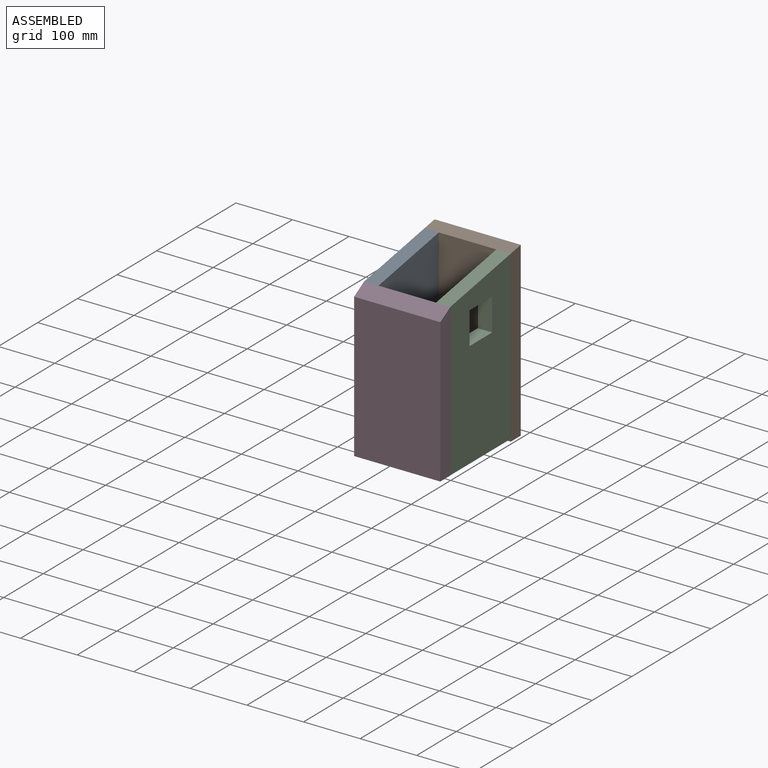
[diagram: assembled view]
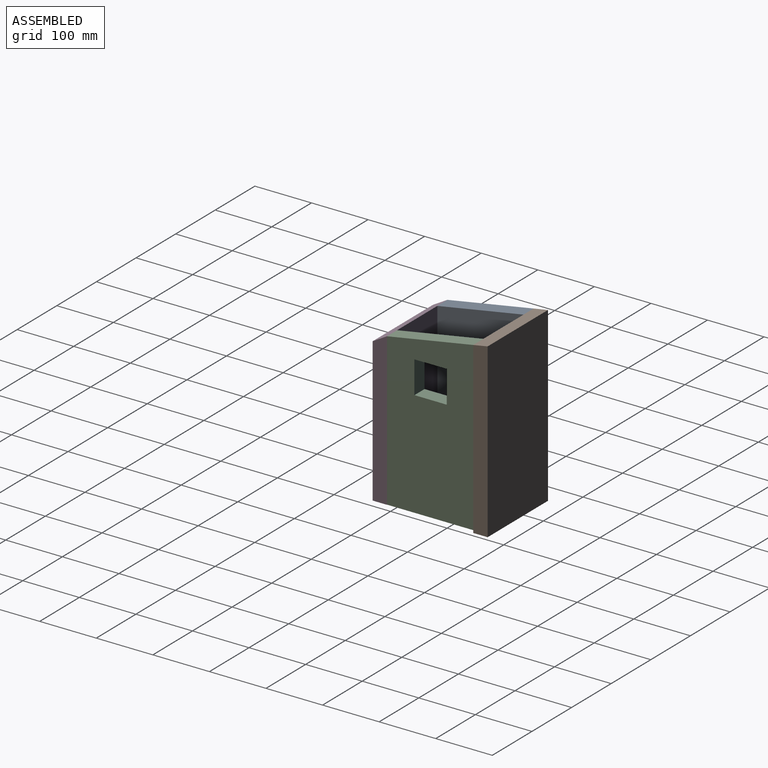
[diagram: assembled view, second angle]
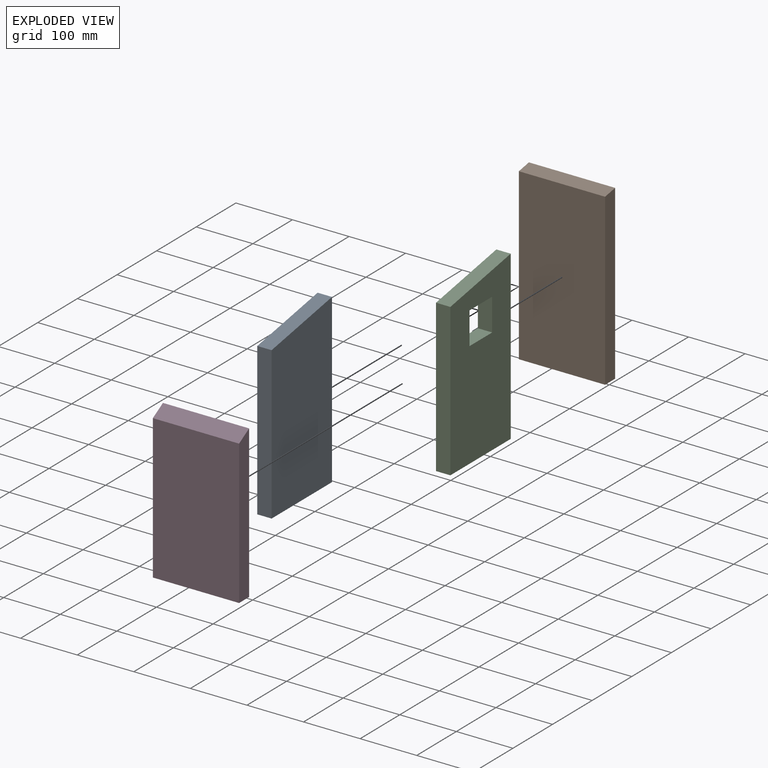
[diagram: exploded view]
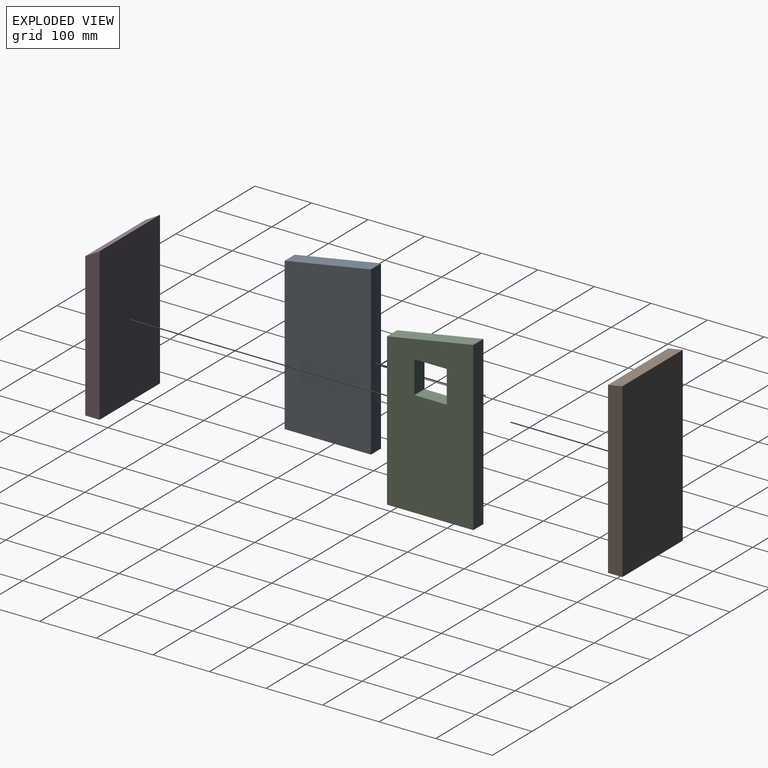
[diagram: exploded view, second angle]
ASSEMBLY  parts=4 mates=3
PART A: 6 faces, bbox 152.4x25.4x295.8 mm
  f0: plane 268.97x25.4mm, normal (-1,0,0), area 6831.8mm2, adj f1,f3,f4,f5
  f1: plane 152.4x25.4mm, normal (0,0,-1), area 3871mm2, adj f0,f2,f3,f4
  f2: plane 295.84x25.4mm, normal (1,0,0), area 7514.4mm2, adj f1,f3,f4,f5
  f3: plane 295.84x152.4mm, normal (0,-1,0), area 43038.7mm2, adj f0,f1,f2,f5
  f4: plane 295.84x152.4mm, normal (0,1,0), area 43038.7mm2, adj f0,f1,f2,f5
  f5: plane 152.4x26.87mm, normal (-0.17,0,0.98), area 3930.7mm2, adj f0,f2,f3,f4
PART B: 6 faces, bbox 152.4x25.4x304.8 mm
  f0: plane 304.8x25.4mm, normal (-1,0,0), area 7685mm2, adj f1,f3,f4,f5
  f1: plane 152.4x25.4mm, normal (0,0,-1), area 3871mm2, adj f0,f2,f3,f4
  f2: plane 304.8x25.4mm, normal (1,0,0), area 7685mm2, adj f1,f3,f4,f5
  f3: plane 300.32x152.4mm, normal (0,-1,0), area 45769mm2, adj f0,f1,f2,f5
  f4: plane 304.8x152.4mm, normal (0,1,0), area 46451.5mm2, adj f0,f1,f2,f5
  f5: plane 152.4x25.4mm, normal (0,-0.17,0.98), area 3930.7mm2, adj f0,f2,f3,f4
PART C: 10 faces, bbox 152.4x25.4x295.8 mm
  f0: plane 295.84x152.4mm, normal (0,-1,0), area 39772.6mm2, adj f2,f3,f4,f5,f6,f7,f8,f9
  f1: plane 295.84x152.4mm, normal (0,1,0), area 39772.6mm2, adj f2,f3,f4,f5,f6,f7,f8,f9
  f2: plane 268.97x25.4mm, normal (-1,0,0), area 6831.8mm2, adj f0,f1,f3,f5
  f3: plane 152.4x25.4mm, normal (0,0,-1), area 3871mm2, adj f0,f1,f2,f4
  f4: plane 295.84x25.4mm, normal (1,0,0), area 7514.4mm2, adj f0,f1,f3,f5
  f5: plane 152.4x26.87mm, normal (-0.17,0,0.98), area 3930.7mm2, adj f0,f1,f2,f4
  f6: plane 57.15x25.4mm, normal (0,0,1), area 1451.6mm2, adj f0,f1,f7,f8
  f7: plane 57.15x25.4mm, normal (-1,0,0), area 1451.6mm2, adj f0,f1,f6,f9
  f8: plane 57.15x25.4mm, normal (1,0,0), area 1451.6mm2, adj f0,f1,f6,f9
  f9: plane 57.15x25.4mm, normal (0,0,-1), area 1451.6mm2, adj f0,f1,f7,f8
PART D: 6 faces, bbox 152.4x25.4x269.2 mm
  f0: plane 269.24x25.4mm, normal (-1,0,0), area 6652.5mm2, adj f1,f3,f4,f5
  f1: plane 152.4x25.4mm, normal (0,0,-1), area 3871mm2, adj f0,f2,f3,f4
  f2: plane 269.24x25.4mm, normal (1,0,0), area 6652.5mm2, adj f1,f3,f4,f5
  f3: plane 254.58x152.4mm, normal (0,-1,0), area 38797.3mm2, adj f0,f1,f2,f5
  f4: plane 269.24x152.4mm, normal (0,1,0), area 41032.2mm2, adj f0,f1,f2,f5
  f5: plane 152.4x25.4mm, normal (0,-0.5,0.87), area 4469.8mm2, adj f0,f2,f3,f4
PLACE A rot(axis=(0,0,1),90deg) t=(-149.95,-98.89,57.55)mm
PLACE B t=(-72.21,-26.65,22.56)mm fixed
PLACE C rot(axis=(0,0,1),90deg) t=(-22.95,-98.89,57.55)mm
PLACE D t=(-72.21,-204.45,26.77)mm
MATE fastened A.f2 <-> B.f3  axis (0,1,0) through (-149.95,-52.05,196.6)mm
MATE fastened D.f4 <-> C.f2  axis (0,1,0) through (2.45,-204.45,169.72)mm
MATE fastened C.f4 <-> B.f3  axis (0,1,0) through (2.45,-52.05,196.6)mm
